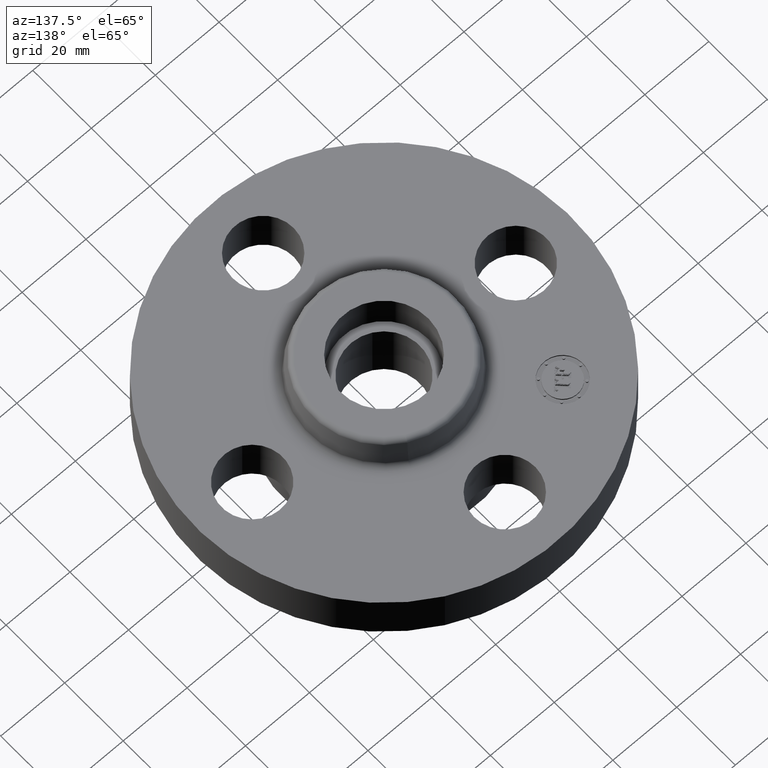
[diagram: clean part render]
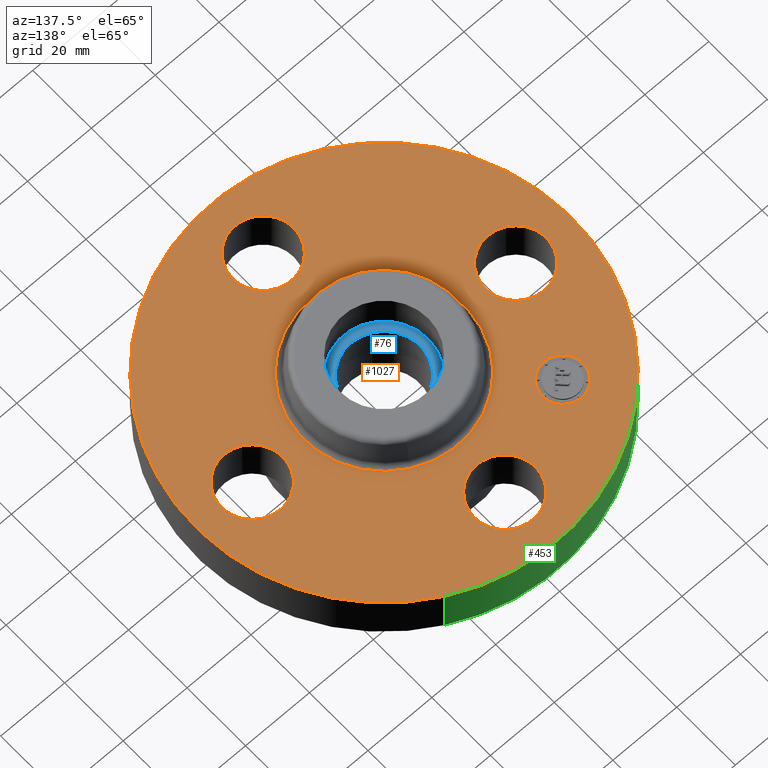
[diagram: same view with three faces highlighted in distinct colors, each labeled with its STEP entity id]
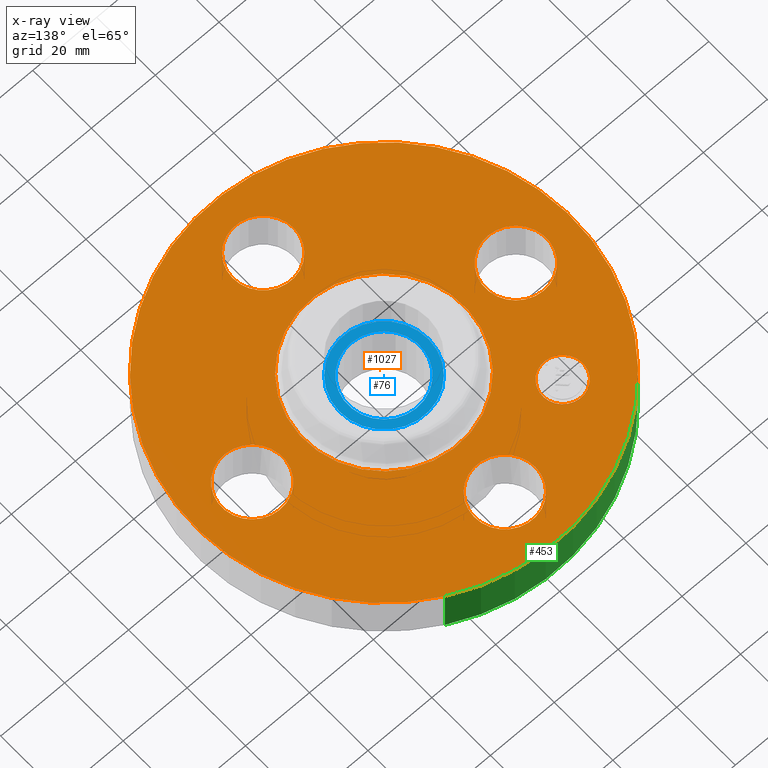
[diagram: x-ray of the same camera — body ghosted, the three highlighted faces saturated]
A machine part, auxiliary view with three faces highlighted in distinct colors.
The next image is the same camera in x-ray (body ghosted, the three faces saturated) — at least one of them is partly hidden behind the body in this view.
Their STEP definitions:

[orange] entity #1027 — the highlighted planar face has unit normal (0, 0, -1).
#437=AXIS2_PLACEMENT_3D('Circle Axis2P3D',#435,#436,$) ;
#456=AXIS2_PLACEMENT_3D('Circle Axis2P3D',#454,#455,$) ;
#487=AXIS2_PLACEMENT_3D('Circle Axis2P3D',#485,#486,$) ;
#499=AXIS2_PLACEMENT_3D('Circle Axis2P3D',#497,#498,$) ;
#531=AXIS2_PLACEMENT_3D('Circle Axis2P3D',#529,#530,$) ;
#543=AXIS2_PLACEMENT_3D('Circle Axis2P3D',#541,#542,$) ;
#575=AXIS2_PLACEMENT_3D('Circle Axis2P3D',#573,#574,$) ;
#587=AXIS2_PLACEMENT_3D('Circle Axis2P3D',#585,#586,$) ;
#619=AXIS2_PLACEMENT_3D('Circle Axis2P3D',#617,#618,$) ;
#631=AXIS2_PLACEMENT_3D('Circle Axis2P3D',#629,#630,$) ;
#649=AXIS2_PLACEMENT_3D('Circle Axis2P3D',#647,#648,$) ;
#684=AXIS2_PLACEMENT_3D('Circle Axis2P3D',#682,#683,$) ;
#983=AXIS2_PLACEMENT_3D('Plane Axis2P3D',#980,#981,#982) ;
#1011=AXIS2_PLACEMENT_3D('Circle Axis2P3D',#1009,#1010,$) ;
#1020=AXIS2_PLACEMENT_3D('Circle Axis2P3D',#1018,#1019,$) ;
#432=CARTESIAN_POINT('Vertex',(-1.10747299418,-2.02721571797,0.620000000002)) ;
#435=CARTESIAN_POINT('Axis2P3D Location',(0.,0.,0.620000000002)) ;
#439=CARTESIAN_POINT('Vertex',(1.10747299418,2.02721571797,0.620000000002)) ;
#454=CARTESIAN_POINT('Axis2P3D Location',(0.,0.,0.620000000002)) ;
#475=CARTESIAN_POINT('Vertex',(-1.80478457698,-0.32909346071,0.620000000002)) ;
#482=CARTESIAN_POINT('Vertex',(-1.44521542303,0.32909346071,0.620000000002)) ;
#485=CARTESIAN_POINT('Axis2P3D Location',(-1.62500000001,-2.98507657293E-016,0.620000000002)) ;
#497=CARTESIAN_POINT('Axis2P3D Location',(-1.62500000001,-2.98507657293E-016,0.620000000002)) ;
#519=CARTESIAN_POINT('Vertex',(-0.32909346071,1.80478457698,0.620000000002)) ;
#526=CARTESIAN_POINT('Vertex',(0.32909346071,1.44521542303,0.620000000002)) ;
#529=CARTESIAN_POINT('Axis2P3D Location',(0.,1.62500000001,0.620000000002)) ;
#541=CARTESIAN_POINT('Axis2P3D Location',(0.,1.62500000001,0.620000000002)) ;
#563=CARTESIAN_POINT('Vertex',(1.80478457698,0.32909346071,0.620000000002)) ;
#570=CARTESIAN_POINT('Vertex',(1.44521542303,-0.32909346071,0.620000000002)) ;
#573=CARTESIAN_POINT('Axis2P3D Location',(1.62500000001,-1.8023868212E-016,0.620000000002)) ;
#585=CARTESIAN_POINT('Axis2P3D Location',(1.62500000001,-1.8023868212E-016,0.620000000002)) ;
#607=CARTESIAN_POINT('Vertex',(0.32909346071,-1.80478457698,0.620000000002)) ;
#614=CARTESIAN_POINT('Vertex',(-0.32909346071,-1.44521542303,0.620000000002)) ;
#617=CARTESIAN_POINT('Axis2P3D Location',(1.99005104862E-016,-1.62500000001,0.620000000002)) ;
#629=CARTESIAN_POINT('Axis2P3D Location',(1.99005104862E-016,-1.62500000001,0.620000000002)) ;
#647=CARTESIAN_POINT('Axis2P3D Location',(0.,0.,0.620000000002)) ;
#651=CARTESIAN_POINT('Vertex',(0.474797153847,0.869110360421,0.620000000002)) ;
#653=CARTESIAN_POINT('Vertex',(-0.474797153847,-0.869110360421,0.620000000002)) ;
#682=CARTESIAN_POINT('Axis2P3D Location',(0.,0.,0.620000000002)) ;
#980=CARTESIAN_POINT('Axis2P3D Location',(0.,2.31000000001,0.620000000002)) ;
#1009=CARTESIAN_POINT('Axis2P3D Location',(-1.14904851943,1.14904851943,0.620000000002)) ;
#1013=CARTESIAN_POINT('Vertex',(-1.32405744778,0.974039591088,0.620000000002)) ;
#1015=CARTESIAN_POINT('Vertex',(-0.974039591088,1.32405744778,0.620000000002)) ;
#1018=CARTESIAN_POINT('Axis2P3D Location',(-1.14904851943,1.14904851943,0.620000000002)) ;
#436=DIRECTION('Axis2P3D Direction',(0.,0.,-0.0393700787402)) ;
#455=DIRECTION('Axis2P3D Direction',(0.,0.,-0.0393700787402)) ;
#486=DIRECTION('Axis2P3D Direction',(0.,0.,-0.0393700787402)) ;
#498=DIRECTION('Axis2P3D Direction',(0.,0.,-0.0393700787402)) ;
#530=DIRECTION('Axis2P3D Direction',(0.,-0.,-0.0393700787402)) ;
#542=DIRECTION('Axis2P3D Direction',(0.,-0.,-0.0393700787402)) ;
#574=DIRECTION('Axis2P3D Direction',(0.,-0.,-0.0393700787402)) ;
#586=DIRECTION('Axis2P3D Direction',(0.,-0.,-0.0393700787402)) ;
#618=DIRECTION('Axis2P3D Direction',(-0.,0.,-0.0393700787402)) ;
#630=DIRECTION('Axis2P3D Direction',(-0.,0.,-0.0393700787402)) ;
#648=DIRECTION('Axis2P3D Direction',(0.,0.,-0.0393700787402)) ;
#683=DIRECTION('Axis2P3D Direction',(0.,0.,-0.0393700787402)) ;
#981=DIRECTION('Axis2P3D Direction',(0.,0.,-0.0393700787402)) ;
#982=DIRECTION('Axis2P3D XDirection',(0.0393700787402,0.,0.)) ;
#1010=DIRECTION('Axis2P3D Direction',(0.,0.,-0.0393700787402)) ;
#1019=DIRECTION('Axis2P3D Direction',(0.,0.,-0.0393700787402)) ;
#986=ORIENTED_EDGE('',*,*,#458,.F.) ;
#987=ORIENTED_EDGE('',*,*,#441,.F.) ;
#990=ORIENTED_EDGE('',*,*,#533,.T.) ;
#991=ORIENTED_EDGE('',*,*,#545,.T.) ;
#994=ORIENTED_EDGE('',*,*,#686,.T.) ;
#995=ORIENTED_EDGE('',*,*,#655,.T.) ;
#998=ORIENTED_EDGE('',*,*,#589,.T.) ;
#999=ORIENTED_EDGE('',*,*,#577,.T.) ;
#1002=ORIENTED_EDGE('',*,*,#633,.T.) ;
#1003=ORIENTED_EDGE('',*,*,#621,.T.) ;
#1006=ORIENTED_EDGE('',*,*,#501,.T.) ;
#1007=ORIENTED_EDGE('',*,*,#489,.T.) ;
#1024=ORIENTED_EDGE('',*,*,#1017,.T.) ;
#1025=ORIENTED_EDGE('',*,*,#1022,.T.) ;
#992=FACE_BOUND('',#989,.T.) ;
#996=FACE_BOUND('',#993,.T.) ;
#1000=FACE_BOUND('',#997,.T.) ;
#1004=FACE_BOUND('',#1001,.T.) ;
#1008=FACE_BOUND('',#1005,.T.) ;
#1026=FACE_BOUND('',#1023,.T.) ;
#1027=ADVANCED_FACE('PartBody',(#988,#992,#996,#1000,#1004,#1008,#1026),#984,.F.) ;
#438=CIRCLE('generated circle',#437,2.31000000001) ;
#457=CIRCLE('generated circle',#456,2.31000000001) ;
#488=CIRCLE('generated circle',#487,0.375000000001) ;
#500=CIRCLE('generated circle',#499,0.375000000001) ;
#532=CIRCLE('generated circle',#531,0.375000000001) ;
#544=CIRCLE('generated circle',#543,0.375000000001) ;
#576=CIRCLE('generated circle',#575,0.375000000001) ;
#588=CIRCLE('generated circle',#587,0.375000000001) ;
#620=CIRCLE('generated circle',#619,0.375000000001) ;
#632=CIRCLE('generated circle',#631,0.375000000001) ;
#650=CIRCLE('generated circle',#649,0.990345977875) ;
#685=CIRCLE('generated circle',#684,0.990345977875) ;
#1012=CIRCLE('generated circle',#1011,0.247500000001) ;
#1021=CIRCLE('generated circle',#1020,0.247500000001) ;
#441=EDGE_CURVE('',#433,#440,#438,.T.) ;
#458=EDGE_CURVE('',#440,#433,#457,.T.) ;
#489=EDGE_CURVE('',#476,#483,#488,.T.) ;
#501=EDGE_CURVE('',#483,#476,#500,.T.) ;
#533=EDGE_CURVE('',#520,#527,#532,.T.) ;
#545=EDGE_CURVE('',#527,#520,#544,.T.) ;
#577=EDGE_CURVE('',#564,#571,#576,.T.) ;
#589=EDGE_CURVE('',#571,#564,#588,.T.) ;
#621=EDGE_CURVE('',#608,#615,#620,.T.) ;
#633=EDGE_CURVE('',#615,#608,#632,.T.) ;
#655=EDGE_CURVE('',#652,#654,#650,.T.) ;
#686=EDGE_CURVE('',#654,#652,#685,.T.) ;
#1017=EDGE_CURVE('',#1014,#1016,#1012,.T.) ;
#1022=EDGE_CURVE('',#1016,#1014,#1021,.T.) ;
#985=EDGE_LOOP('',(#986,#987)) ;
#989=EDGE_LOOP('',(#990,#991)) ;
#993=EDGE_LOOP('',(#994,#995)) ;
#997=EDGE_LOOP('',(#998,#999)) ;
#1001=EDGE_LOOP('',(#1002,#1003)) ;
#1005=EDGE_LOOP('',(#1006,#1007)) ;
#1023=EDGE_LOOP('',(#1024,#1025)) ;
#988=FACE_OUTER_BOUND('',#985,.T.) ;
#984=PLANE('',#983) ;
#433=VERTEX_POINT('',#432) ;
#440=VERTEX_POINT('',#439) ;
#476=VERTEX_POINT('',#475) ;
#483=VERTEX_POINT('',#482) ;
#520=VERTEX_POINT('',#519) ;
#527=VERTEX_POINT('',#526) ;
#564=VERTEX_POINT('',#563) ;
#571=VERTEX_POINT('',#570) ;
#608=VERTEX_POINT('',#607) ;
#615=VERTEX_POINT('',#614) ;
#652=VERTEX_POINT('',#651) ;
#654=VERTEX_POINT('',#653) ;
#1014=VERTEX_POINT('',#1013) ;
#1016=VERTEX_POINT('',#1015) ;

[blue] entity #76 — the highlighted planar face has unit normal (0, 0, -1).
#38=AXIS2_PLACEMENT_3D('Plane Axis2P3D',#35,#36,#37) ;
#42=AXIS2_PLACEMENT_3D('Circle Axis2P3D',#40,#41,$) ;
#51=AXIS2_PLACEMENT_3D('Circle Axis2P3D',#49,#50,$) ;
#60=AXIS2_PLACEMENT_3D('Circle Axis2P3D',#58,#59,$) ;
#69=AXIS2_PLACEMENT_3D('Circle Axis2P3D',#67,#68,$) ;
#35=CARTESIAN_POINT('Axis2P3D Location',(1.04902962957E-016,-6.99353086378E-017,0.560000000002)) ;
#40=CARTESIAN_POINT('Axis2P3D Location',(1.04902962957E-016,-6.99353086378E-017,0.560000000002)) ;
#44=CARTESIAN_POINT('Vertex',(-0.478282496232,0.26128691854,0.560000000002)) ;
#46=CARTESIAN_POINT('Vertex',(0.478282496232,-0.26128691854,0.560000000002)) ;
#49=CARTESIAN_POINT('Axis2P3D Location',(1.04902962957E-016,-6.99353086378E-017,0.560000000002)) ;
#58=CARTESIAN_POINT('Axis2P3D Location',(3.49676543189E-017,0.,0.560000000002)) ;
#62=CARTESIAN_POINT('Vertex',(-0.211906088064,-0.387891492357,0.560000000002)) ;
#64=CARTESIAN_POINT('Vertex',(0.211906088064,0.387891492357,0.560000000002)) ;
#67=CARTESIAN_POINT('Axis2P3D Location',(-6.99353086378E-017,-3.49676543189E-017,0.560000000002)) ;
#36=DIRECTION('Axis2P3D Direction',(0.,0.,-0.0393700787402)) ;
#37=DIRECTION('Axis2P3D XDirection',(0.0393700787402,0.,0.)) ;
#41=DIRECTION('Axis2P3D Direction',(0.,0.,-0.0393700787402)) ;
#50=DIRECTION('Axis2P3D Direction',(0.,0.,-0.0393700787402)) ;
#59=DIRECTION('Axis2P3D Direction',(0.,0.,-0.0393700787402)) ;
#68=DIRECTION('Axis2P3D Direction',(0.,0.,-0.0393700787402)) ;
#55=ORIENTED_EDGE('',*,*,#48,.F.) ;
#56=ORIENTED_EDGE('',*,*,#53,.F.) ;
#73=ORIENTED_EDGE('',*,*,#66,.T.) ;
#74=ORIENTED_EDGE('',*,*,#71,.T.) ;
#75=FACE_BOUND('',#72,.T.) ;
#76=ADVANCED_FACE('PartBody',(#57,#75),#39,.F.) ;
#43=CIRCLE('generated circle',#42,0.545000000002) ;
#52=CIRCLE('generated circle',#51,0.545000000002) ;
#61=CIRCLE('generated circle',#60,0.442000000002) ;
#70=CIRCLE('generated circle',#69,0.442000000002) ;
#48=EDGE_CURVE('',#45,#47,#43,.T.) ;
#53=EDGE_CURVE('',#47,#45,#52,.T.) ;
#66=EDGE_CURVE('',#63,#65,#61,.T.) ;
#71=EDGE_CURVE('',#65,#63,#70,.T.) ;
#54=EDGE_LOOP('',(#55,#56)) ;
#72=EDGE_LOOP('',(#73,#74)) ;
#57=FACE_OUTER_BOUND('',#54,.T.) ;
#39=PLANE('',#38) ;
#45=VERTEX_POINT('',#44) ;
#47=VERTEX_POINT('',#46) ;
#63=VERTEX_POINT('',#62) ;
#65=VERTEX_POINT('',#64) ;

[green] entity #453 — the highlighted cylindrical surface (partial cylindrical patch) has radius 58.674 mm, axis along (0, 0, -1).
#310=AXIS2_PLACEMENT_3D('Circle Axis2P3D',#308,#309,$) ;
#426=AXIS2_PLACEMENT_3D('Cylinder Axis2P3D',#423,#424,#425) ;
#437=AXIS2_PLACEMENT_3D('Circle Axis2P3D',#435,#436,$) ;
#308=CARTESIAN_POINT('Axis2P3D Location',(0.,0.,0.)) ;
#312=CARTESIAN_POINT('Vertex',(-1.10747299418,-2.02721571797,1.39870617276E-016)) ;
#314=CARTESIAN_POINT('Vertex',(1.10747299418,2.02721571797,1.39870617276E-016)) ;
#423=CARTESIAN_POINT('Axis2P3D Location',(0.,0.,0.375000000002)) ;
#428=CARTESIAN_POINT('Line Origine',(-1.10747299418,-2.02721571797,0.310000000001)) ;
#432=CARTESIAN_POINT('Vertex',(-1.10747299418,-2.02721571797,0.620000000002)) ;
#435=CARTESIAN_POINT('Axis2P3D Location',(0.,0.,0.620000000002)) ;
#439=CARTESIAN_POINT('Vertex',(1.10747299418,2.02721571797,0.620000000002)) ;
#442=CARTESIAN_POINT('Line Origine',(1.10747299418,2.02721571797,0.310000000001)) ;
#309=DIRECTION('Axis2P3D Direction',(0.,0.,-0.0393700787402)) ;
#424=DIRECTION('Axis2P3D Direction',(0.,0.,-0.0393700787402)) ;
#425=DIRECTION('Axis2P3D XDirection',(0.0188750212049,0.0345504945626,0.)) ;
#429=DIRECTION('Vector Direction',(0.,0.,-0.0393700787402)) ;
#436=DIRECTION('Axis2P3D Direction',(0.,0.,-0.0393700787402)) ;
#443=DIRECTION('Vector Direction',(0.,0.,-0.0393700787402)) ;
#430=VECTOR('Line Direction',#429,0.0393700787402) ;
#444=VECTOR('Line Direction',#443,0.0393700787402) ;
#448=ORIENTED_EDGE('',*,*,#316,.F.) ;
#449=ORIENTED_EDGE('',*,*,#434,.T.) ;
#450=ORIENTED_EDGE('',*,*,#441,.T.) ;
#451=ORIENTED_EDGE('',*,*,#446,.F.) ;
#453=ADVANCED_FACE('PartBody',(#452),#427,.T.) ;
#311=CIRCLE('generated circle',#310,2.31000000001) ;
#438=CIRCLE('generated circle',#437,2.31000000001) ;
#427=CYLINDRICAL_SURFACE('generated cylinder',#426,2.31000000001) ;
#316=EDGE_CURVE('',#313,#315,#311,.T.) ;
#434=EDGE_CURVE('',#313,#433,#431,.F.) ;
#441=EDGE_CURVE('',#433,#440,#438,.T.) ;
#446=EDGE_CURVE('',#315,#440,#445,.F.) ;
#447=EDGE_LOOP('',(#448,#449,#450,#451)) ;
#452=FACE_OUTER_BOUND('',#447,.T.) ;
#431=LINE('Line',#428,#430) ;
#445=LINE('Line',#442,#444) ;
#313=VERTEX_POINT('',#312) ;
#315=VERTEX_POINT('',#314) ;
#433=VERTEX_POINT('',#432) ;
#440=VERTEX_POINT('',#439) ;